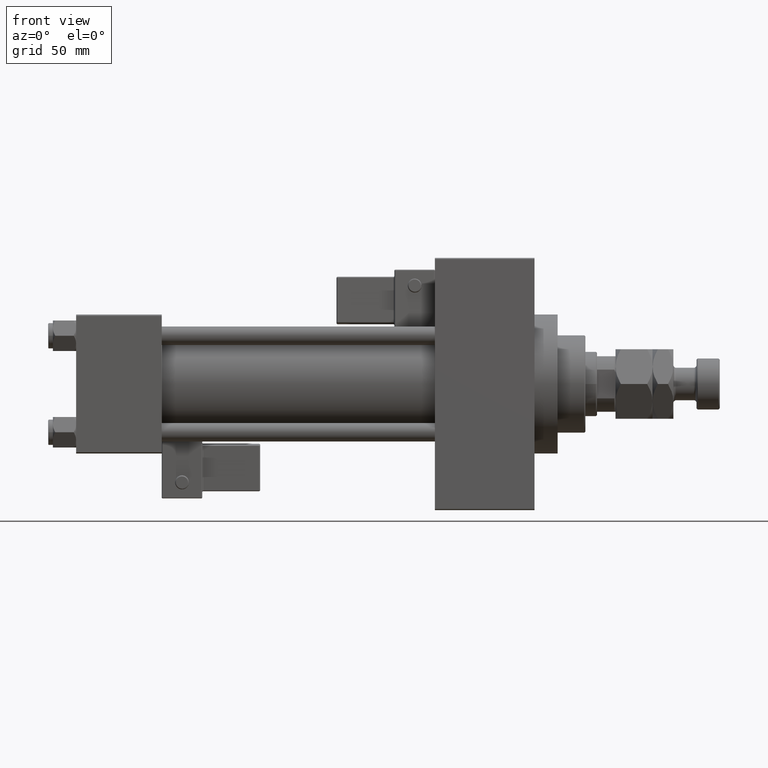
[diagram: clean part render]
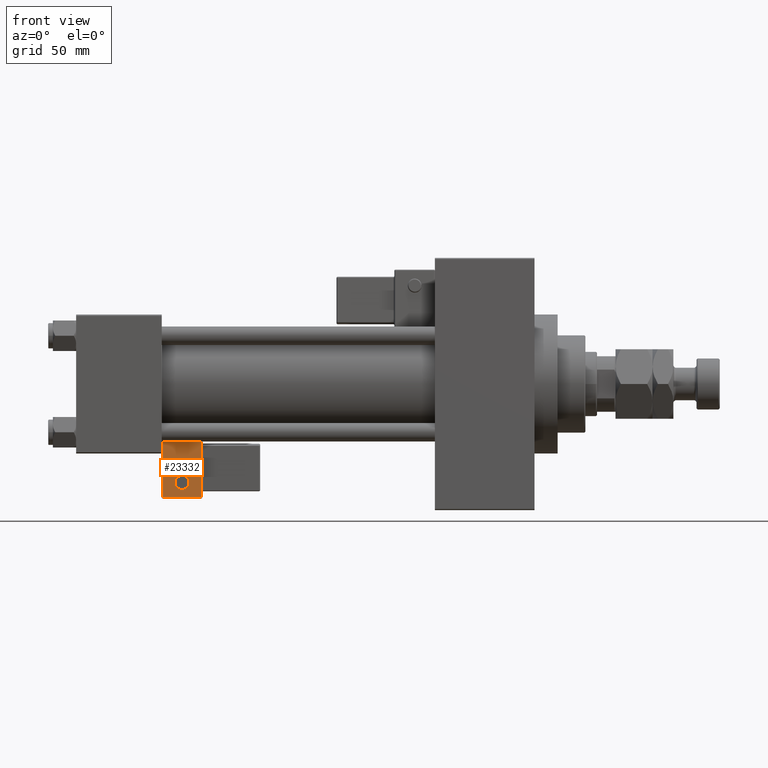
[diagram: same view with one face highlighted and labeled with its STEP entity id]
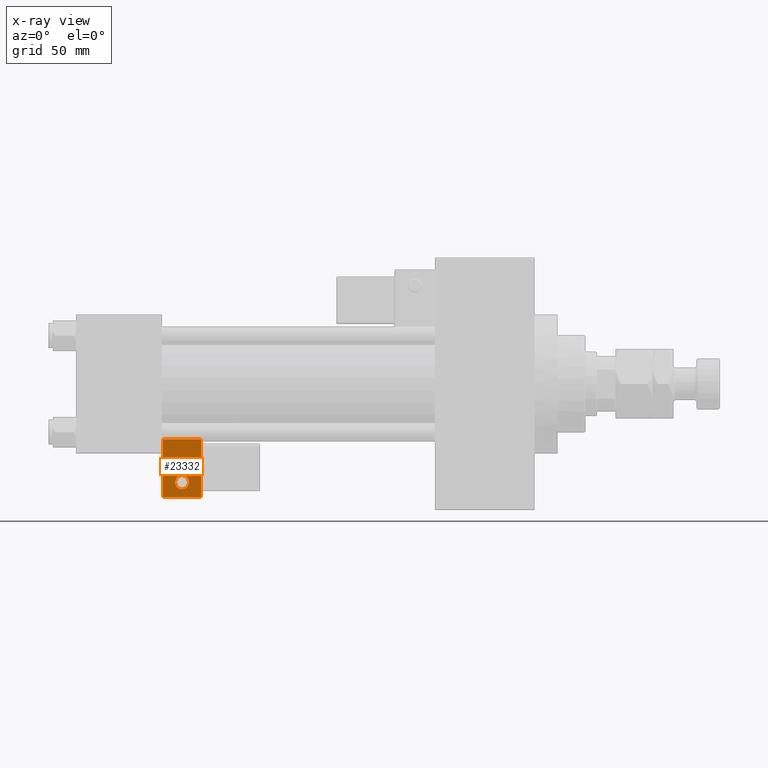
[diagram: x-ray of the same camera — body ghosted, the highlighted face saturated]
A machine part, front view. The second image highlights one B-rep face of the part: STEP entity #23332.
The next image is the same camera in x-ray: the body ghosted, the highlighted face saturated — about 0% of this face is hidden behind the body in this view.
In plain terms, the highlighted planar face has unit normal (0, 0.9994, 0.0353).
Its self-contained STEP definition (entity closure, byte-faithful):
#787 = DIRECTION ( 'NONE',  ( 0.000000000000000000, 0.000000000000000000, 1.000000000000000000 ) ) ;
#1455 = LINE ( 'NONE', #28516, #50821 ) ;
#3360 = VERTEX_POINT ( 'NONE', #20047 ) ;
#4287 = DIRECTION ( 'NONE',  ( -1.000000000000000000, 0.000000000000000000, 1.982541115402065110E-16 ) ) ;
#4909 = ORIENTED_EDGE ( 'NONE', *, *, #21510, .T. ) ;
#5280 = CARTESIAN_POINT ( 'NONE',  ( -4.336808689942017736E-16, -35.75000000000000000, 9.000000000000001776 ) ) ;
#5396 = CARTESIAN_POINT ( 'NONE',  ( 8.250000000000003553, -35.75000000000000000, -0.5000000000000002220 ) ) ;
#8179 = LINE ( 'NONE', #24062, #31897 ) ;
#10372 = DIRECTION ( 'NONE',  ( 1.000000000000000000, 0.000000000000000000, 0.000000000000000000 ) ) ;
#11123 = VECTOR ( 'NONE', #10372, 1000.000000000000000 ) ;
#11757 = EDGE_CURVE ( 'NONE', #31289, #43018, #49934, .T. ) ;
#11770 = DIRECTION ( 'NONE',  ( 0.000000000000000000, -0.000000000000000000, 1.000000000000000000 ) ) ;
#13215 = EDGE_LOOP ( 'NONE', ( #23543, #32205 ) ) ;
#13821 = EDGE_CURVE ( 'NONE', #24006, #3360, #1455, .T. ) ;
#14015 = CARTESIAN_POINT ( 'NONE',  ( 0.000000000000000000, -35.75000000000000000, -0.5000000000000002220 ) ) ;
#14771 = CARTESIAN_POINT ( 'NONE',  ( -4.336808689942017736E-16, -35.75000000000000000, 6.000000000000001776 ) ) ;
#14916 = FACE_BOUND ( 'NONE', #13215, .T. ) ;
#15927 = CARTESIAN_POINT ( 'NONE',  ( 0.000000000000000000, -35.75000000000000000, 0.000000000000000000 ) ) ;
#17615 = ORIENTED_EDGE ( 'NONE', *, *, #13821, .T. ) ;
#17795 = AXIS2_PLACEMENT_3D ( 'NONE', #14771, #46482, #31152 ) ;
#18910 = ORIENTED_EDGE ( 'NONE', *, *, #25559, .T. ) ;
#20010 = AXIS2_PLACEMENT_3D ( 'NONE', #20543, #24460, #787 ) ;
#20047 = CARTESIAN_POINT ( 'NONE',  ( 8.250000000000000000, -35.75000000000000000, 24.50000000000000000 ) ) ;
#20543 = CARTESIAN_POINT ( 'NONE',  ( -4.336808689942017736E-16, -35.75000000000000000, 6.000000000000001776 ) ) ;
#21143 = AXIS2_PLACEMENT_3D ( 'NONE', #15927, #47394, #11770 ) ;
#21510 = EDGE_CURVE ( 'NONE', #25500, #24006, #34539, .T. ) ;
#22483 = DIRECTION ( 'NONE',  ( -1.334402673828313093E-16, 0.000000000000000000, -1.000000000000000000 ) ) ;
#23332 = ADVANCED_FACE ( 'NONE', ( #51289, #14916 ), #26888, .F. ) ;
#23543 = ORIENTED_EDGE ( 'NONE', *, *, #11757, .F. ) ;
#24006 = VERTEX_POINT ( 'NONE', #5396 ) ;
#24062 = CARTESIAN_POINT ( 'NONE',  ( 4.857225732735059864E-15, -35.75000000000000000, 24.50000000000000000 ) ) ;
#24460 = DIRECTION ( 'NONE',  ( -0.000000000000000000, -1.000000000000000000, -0.000000000000000000 ) ) ;
#24873 = ORIENTED_EDGE ( 'NONE', *, *, #27441, .T. ) ;
#25137 = DIRECTION ( 'NONE',  ( -1.334402673828313339E-16, 0.000000000000000000, 1.000000000000000000 ) ) ;
#25212 = EDGE_CURVE ( 'NONE', #43018, #31289, #41026, .T. ) ;
#25500 = VERTEX_POINT ( 'NONE', #30576 ) ;
#25559 = EDGE_CURVE ( 'NONE', #3360, #32389, #8179, .T. ) ;
#26168 = VECTOR ( 'NONE', #22483, 1000.000000000000000 ) ;
#26888 = PLANE ( 'NONE',  #21143 ) ;
#27415 = LINE ( 'NONE', #42747, #26168 ) ;
#27441 = EDGE_CURVE ( 'NONE', #32389, #25500, #27415, .T. ) ;
#28516 = CARTESIAN_POINT ( 'NONE',  ( 8.250000000000003553, -35.75000000000000000, 1.100882205908358986E-15 ) ) ;
#30576 = CARTESIAN_POINT ( 'NONE',  ( -8.250000000000003553, -35.75000000000000000, -0.5000000000000002220 ) ) ;
#31152 = DIRECTION ( 'NONE',  ( 0.000000000000000000, 0.000000000000000000, 1.000000000000000000 ) ) ;
#31289 = VERTEX_POINT ( 'NONE', #5280 ) ;
#31897 = VECTOR ( 'NONE', #4287, 1000.000000000000000 ) ;
#32205 = ORIENTED_EDGE ( 'NONE', *, *, #25212, .F. ) ;
#32389 = VERTEX_POINT ( 'NONE', #33493 ) ;
#33493 = CARTESIAN_POINT ( 'NONE',  ( -8.250000000000000000, -35.75000000000000000, 24.50000000000000355 ) ) ;
#34539 = LINE ( 'NONE', #14015, #11123 ) ;
#38691 = CARTESIAN_POINT ( 'NONE',  ( -6.628682924999581145E-17, -35.75000000000000000, 3.000000000000001776 ) ) ;
#41026 = CIRCLE ( 'NONE', #17795, 2.999999999999999112 ) ;
#42747 = CARTESIAN_POINT ( 'NONE',  ( -8.250000000000003553, -35.75000000000000000, 1.100882205908358788E-15 ) ) ;
#43018 = VERTEX_POINT ( 'NONE', #38691 ) ;
#45507 = EDGE_LOOP ( 'NONE', ( #18910, #24873, #4909, #17615 ) ) ;
#46482 = DIRECTION ( 'NONE',  ( -0.000000000000000000, -1.000000000000000000, -0.000000000000000000 ) ) ;
#47394 = DIRECTION ( 'NONE',  ( 0.000000000000000000, 1.000000000000000000, 0.000000000000000000 ) ) ;
#49934 = CIRCLE ( 'NONE', #20010, 2.999999999999999112 ) ;
#50821 = VECTOR ( 'NONE', #25137, 1000.000000000000000 ) ;
#51289 = FACE_OUTER_BOUND ( 'NONE', #45507, .T. ) ;